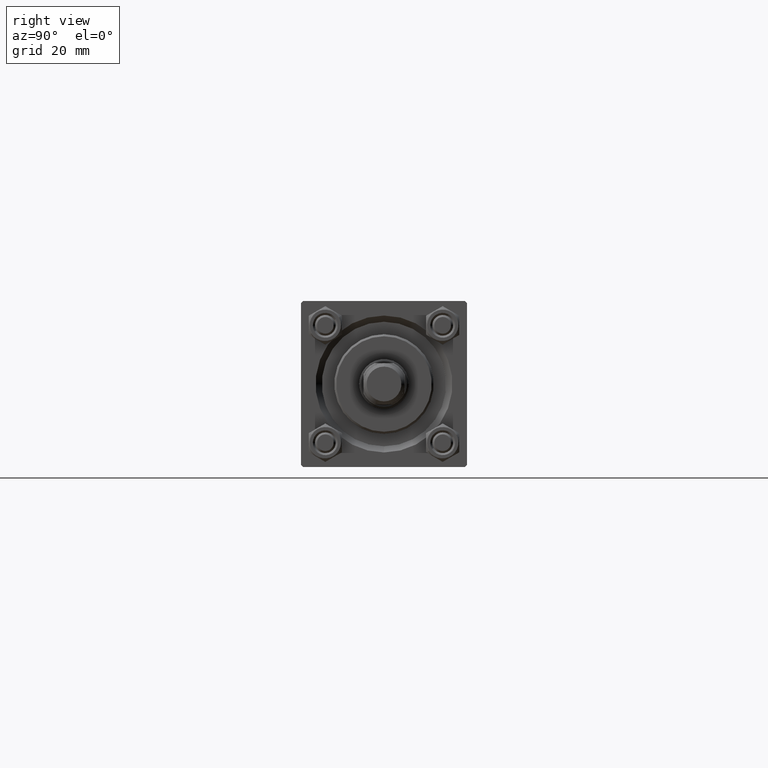
[diagram: clean part render]
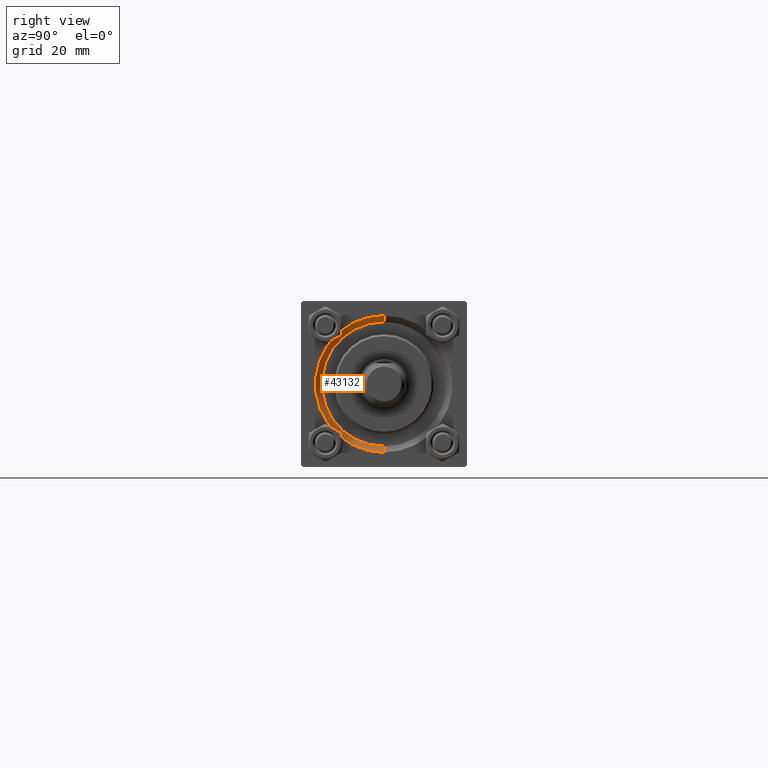
[diagram: same view with one face highlighted and labeled with its STEP entity id]
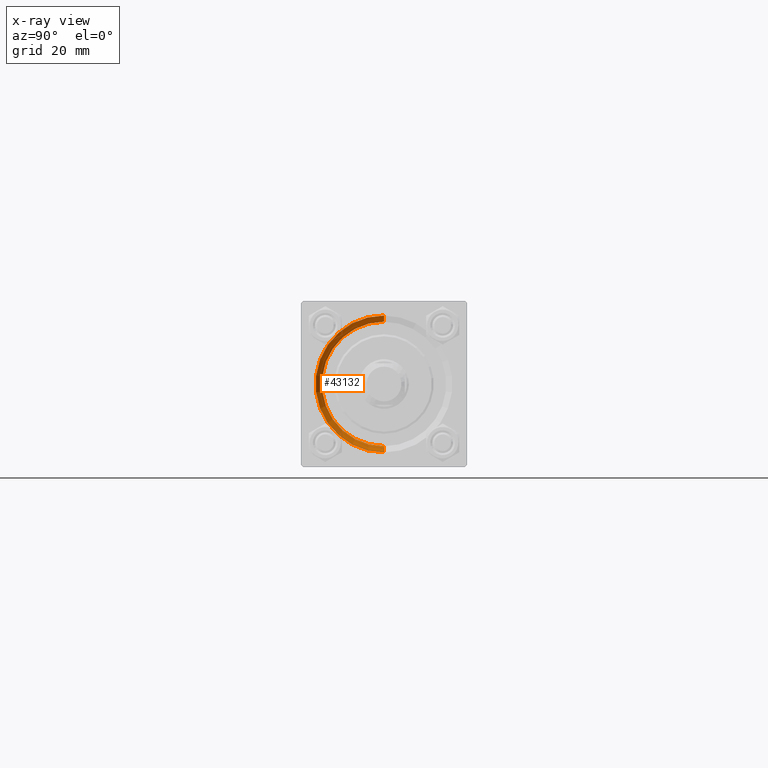
[diagram: x-ray of the same camera — body ghosted, the highlighted face saturated]
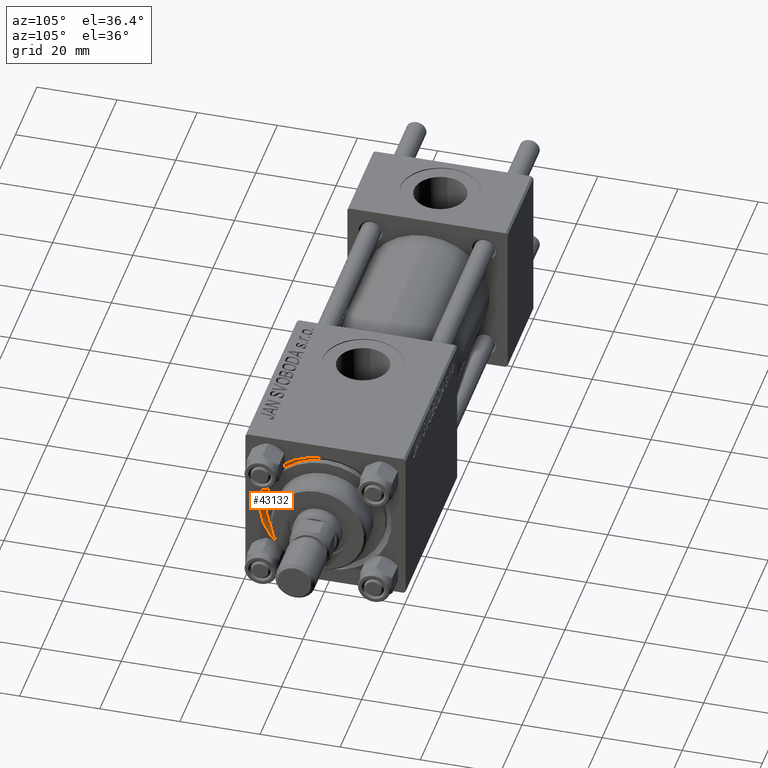
[diagram: same view with one face highlighted and labeled with its STEP entity id]
A machine part, right view. The second image highlights one B-rep face of the part: STEP entity #43132.
The next image is the same camera in x-ray: the body ghosted, the highlighted face saturated — about 0% of this face is hidden behind the body in this view.
A second angle (auxiliary view) of the same face is appended — the face is thin or edge-on in the first view.
In plain terms, the highlighted conical surface has half-angle 45 deg.
Its self-contained STEP definition (entity closure, byte-faithful):
#3621 = VECTOR ( 'NONE', #7855, 1000.000000000000114 ) ;
#7855 = DIRECTION ( 'NONE',  ( 0.7071067811865474617, 0.000000000000000000, -0.7071067811865474617 ) ) ;
#9307 = DIRECTION ( 'NONE',  ( 0.7071067811865474617, 8.659560562354932858E-17, 0.7071067811865474617 ) ) ;
#9563 = EDGE_CURVE ( 'NONE', #12809, #27654, #39287, .T. ) ;
#10910 = AXIS2_PLACEMENT_3D ( 'NONE', #25217, #17599, #39923 ) ;
#11460 = ORIENTED_EDGE ( 'NONE', *, *, #24957, .F. ) ;
#11933 = CARTESIAN_POINT ( 'NONE',  ( 117.5000000000000000, 0.000000000000000000, -15.00000000000000000 ) ) ;
#12300 = CIRCLE ( 'NONE', #40697, 16.50000000000001421 ) ;
#12809 = VERTEX_POINT ( 'NONE', #13985 ) ;
#13131 = CARTESIAN_POINT ( 'NONE',  ( 119.0000000000000142, 0.000000000000000000, 0.000000000000000000 ) ) ;
#13985 = CARTESIAN_POINT ( 'NONE',  ( 117.5000000000000000, 1.836970198721029589E-15, 15.00000000000000000 ) ) ;
#14302 = DIRECTION ( 'NONE',  ( 1.000000000000000000, 0.000000000000000000, 0.000000000000000000 ) ) ;
#14866 = ORIENTED_EDGE ( 'NONE', *, *, #49192, .T. ) ;
#17451 = DIRECTION ( 'NONE',  ( 0.000000000000000000, 0.000000000000000000, 1.000000000000000000 ) ) ;
#17599 = DIRECTION ( 'NONE',  ( 1.000000000000000000, 0.000000000000000000, 0.000000000000000000 ) ) ;
#20729 = CARTESIAN_POINT ( 'NONE',  ( 117.5000000000000000, 1.836970198721029589E-15, 15.00000000000000000 ) ) ;
#24957 = EDGE_CURVE ( 'NONE', #45032, #34527, #12300, .T. ) ;
#25217 = CARTESIAN_POINT ( 'NONE',  ( 117.5000000000000000, 0.000000000000000000, 0.000000000000000000 ) ) ;
#27654 = VERTEX_POINT ( 'NONE', #38504 ) ;
#28370 = DIRECTION ( 'NONE',  ( -1.000000000000000000, -0.000000000000000000, -0.000000000000000000 ) ) ;
#29627 = CARTESIAN_POINT ( 'NONE',  ( 119.0000000000000142, 0.000000000000000000, -16.50000000000001421 ) ) ;
#33915 = ORIENTED_EDGE ( 'NONE', *, *, #35706, .F. ) ;
#34527 = VERTEX_POINT ( 'NONE', #48084 ) ;
#35568 = VECTOR ( 'NONE', #9307, 1000.000000000000114 ) ;
#35706 = EDGE_CURVE ( 'NONE', #27654, #45032, #50278, .T. ) ;
#36655 = FACE_OUTER_BOUND ( 'NONE', #41274, .T. ) ;
#38504 = CARTESIAN_POINT ( 'NONE',  ( 117.5000000000000000, 0.000000000000000000, -15.00000000000000000 ) ) ;
#39285 = LINE ( 'NONE', #20729, #35568 ) ;
#39287 = CIRCLE ( 'NONE', #10910, 15.00000000000000000 ) ;
#39578 = CONICAL_SURFACE ( 'NONE', #43619, 15.00000000000000000, 0.7853981633974482790 ) ;
#39923 = DIRECTION ( 'NONE',  ( 0.000000000000000000, 0.000000000000000000, 1.000000000000000000 ) ) ;
#40697 = AXIS2_PLACEMENT_3D ( 'NONE', #13131, #28370, #17451 ) ;
#41274 = EDGE_LOOP ( 'NONE', ( #45538, #14866, #11460, #33915 ) ) ;
#43132 = ADVANCED_FACE ( 'NONE', ( #36655 ), #39578, .F. ) ;
#43619 = AXIS2_PLACEMENT_3D ( 'NONE', #49091, #14302, #44532 ) ;
#44532 = DIRECTION ( 'NONE',  ( 0.000000000000000000, 0.000000000000000000, -1.000000000000000000 ) ) ;
#45032 = VERTEX_POINT ( 'NONE', #29627 ) ;
#45538 = ORIENTED_EDGE ( 'NONE', *, *, #9563, .F. ) ;
#48084 = CARTESIAN_POINT ( 'NONE',  ( 119.0000000000000142, 2.020667218593134678E-15, 16.50000000000001421 ) ) ;
#49091 = CARTESIAN_POINT ( 'NONE',  ( 117.5000000000000000, 0.000000000000000000, 0.000000000000000000 ) ) ;
#49192 = EDGE_CURVE ( 'NONE', #12809, #34527, #39285, .T. ) ;
#50278 = LINE ( 'NONE', #11933, #3621 ) ;